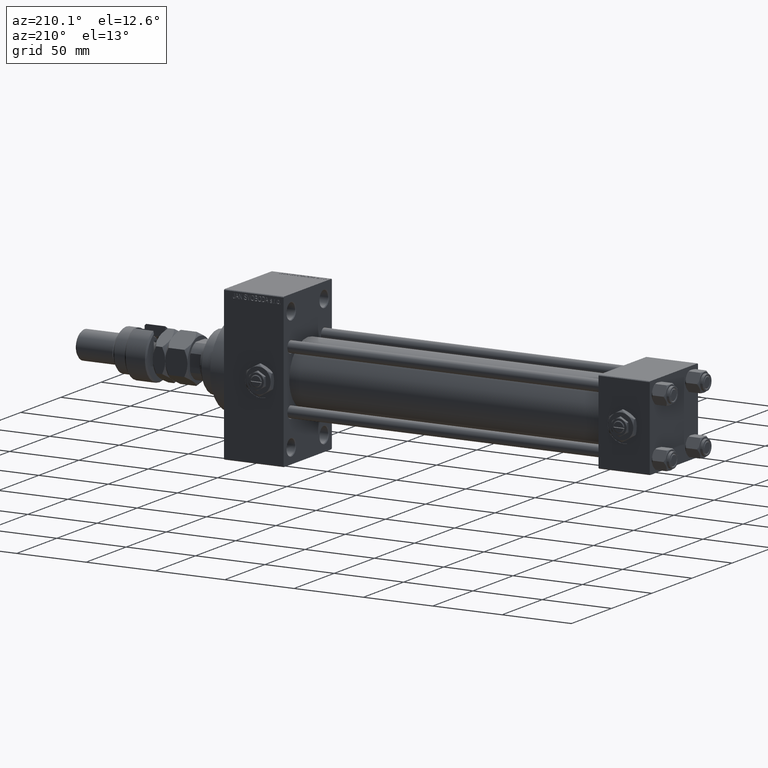
[diagram: clean part render]
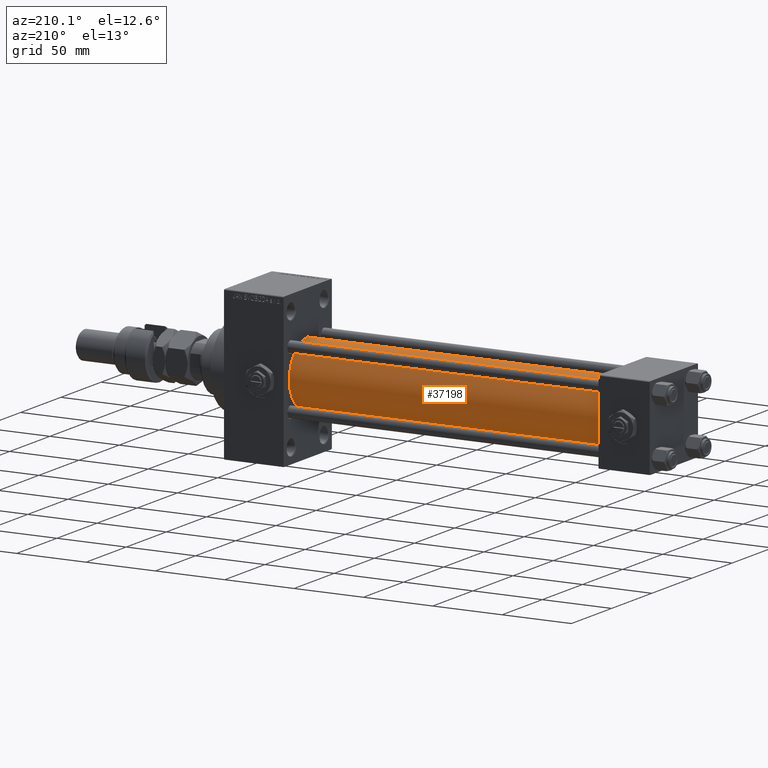
[diagram: same view with one face highlighted and labeled with its STEP entity id]
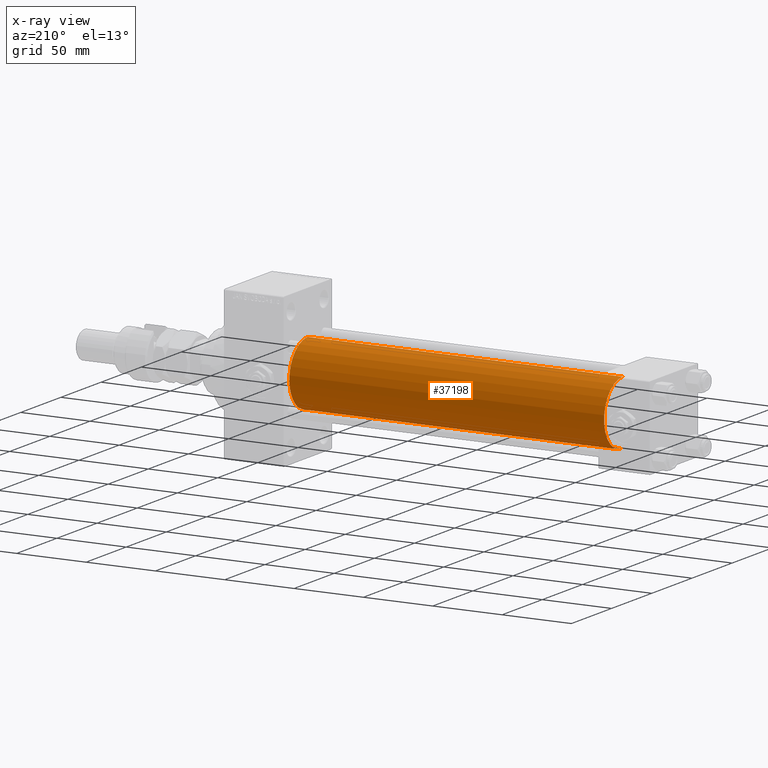
[diagram: x-ray of the same camera — body ghosted, the highlighted face saturated]
A machine part, auxiliary view. The second image highlights one B-rep face of the part: STEP entity #37198.
The next image is the same camera in x-ray: the body ghosted, the highlighted face saturated — about 0% of this face is hidden behind the body in this view.
In plain terms, the highlighted cylindrical surface (partial cylindrical patch) has radius 23 mm, axis along (-1, -0, -0).
Its self-contained STEP definition (entity closure, byte-faithful):
#333 = VERTEX_POINT ( 'NONE', #1546 ) ;
#1546 = CARTESIAN_POINT ( 'NONE',  ( 264.0000000000000000, 2.146024240737012665E-16, -23.00000000000000000 ) ) ;
#2211 = EDGE_CURVE ( 'NONE', #40454, #3701, #44530, .T. ) ;
#3388 = CARTESIAN_POINT ( 'NONE',  ( 37.00000000000000711, -2.602085213965210642E-15, 0.000000000000000000 ) ) ;
#3701 = VERTEX_POINT ( 'NONE', #6055 ) ;
#6055 = CARTESIAN_POINT ( 'NONE',  ( 37.00000000000000711, -2.602085213965210642E-15, 23.00000000000000000 ) ) ;
#7519 = CARTESIAN_POINT ( 'NONE',  ( 264.0000000000000000, -2.602085213965210642E-15, 23.00000000000000000 ) ) ;
#9351 = DIRECTION ( 'NONE',  ( 0.000000000000000000, 0.000000000000000000, -1.000000000000000000 ) ) ;
#10011 = CIRCLE ( 'NONE', #12521, 23.00000000000000000 ) ;
#10399 = CARTESIAN_POINT ( 'NONE',  ( 264.0000000000000000, -2.602085213965210642E-15, 0.000000000000000000 ) ) ;
#11850 = VECTOR ( 'NONE', #40624, 1000.000000000000000 ) ;
#12221 = EDGE_CURVE ( 'NONE', #48445, #3701, #10011, .T. ) ;
#12521 = AXIS2_PLACEMENT_3D ( 'NONE', #3388, #31061, #42910 ) ;
#13527 = AXIS2_PLACEMENT_3D ( 'NONE', #45453, #45193, #9351 ) ;
#14332 = CYLINDRICAL_SURFACE ( 'NONE', #35516, 23.00000000000000000 ) ;
#15859 = CARTESIAN_POINT ( 'NONE',  ( 264.0000000000000000, 2.146024240737012665E-16, -23.00000000000000000 ) ) ;
#16760 = EDGE_CURVE ( 'NONE', #333, #40454, #41316, .T. ) ;
#19609 = EDGE_CURVE ( 'NONE', #333, #48445, #29037, .T. ) ;
#25816 = ORIENTED_EDGE ( 'NONE', *, *, #19609, .T. ) ;
#26488 = DIRECTION ( 'NONE',  ( -1.000000000000000000, -0.000000000000000000, -0.000000000000000000 ) ) ;
#26601 = EDGE_LOOP ( 'NONE', ( #30145, #25816, #32672, #51116 ) ) ;
#27432 = VECTOR ( 'NONE', #31912, 1000.000000000000000 ) ;
#29037 = LINE ( 'NONE', #15859, #11850 ) ;
#30145 = ORIENTED_EDGE ( 'NONE', *, *, #16760, .F. ) ;
#31061 = DIRECTION ( 'NONE',  ( 1.000000000000000000, -0.000000000000000000, 0.000000000000000000 ) ) ;
#31912 = DIRECTION ( 'NONE',  ( -1.000000000000000000, -0.000000000000000000, -0.000000000000000000 ) ) ;
#32672 = ORIENTED_EDGE ( 'NONE', *, *, #12221, .T. ) ;
#34649 = FACE_OUTER_BOUND ( 'NONE', #26601, .T. ) ;
#35516 = AXIS2_PLACEMENT_3D ( 'NONE', #10399, #26488, #42554 ) ;
#36373 = CARTESIAN_POINT ( 'NONE',  ( 264.0000000000000000, -2.602085213965210642E-15, 23.00000000000000000 ) ) ;
#37198 = ADVANCED_FACE ( 'NONE', ( #34649 ), #14332, .T. ) ;
#40454 = VERTEX_POINT ( 'NONE', #7519 ) ;
#40624 = DIRECTION ( 'NONE',  ( -1.000000000000000000, -0.000000000000000000, -0.000000000000000000 ) ) ;
#40886 = CARTESIAN_POINT ( 'NONE',  ( 37.00000000000000711, 2.146024240737012665E-16, -23.00000000000000000 ) ) ;
#41316 = CIRCLE ( 'NONE', #13527, 23.00000000000000000 ) ;
#42554 = DIRECTION ( 'NONE',  ( 0.000000000000000000, 0.000000000000000000, 1.000000000000000000 ) ) ;
#42910 = DIRECTION ( 'NONE',  ( 0.000000000000000000, 0.000000000000000000, 1.000000000000000000 ) ) ;
#44530 = LINE ( 'NONE', #36373, #27432 ) ;
#45193 = DIRECTION ( 'NONE',  ( 1.000000000000000000, 0.000000000000000000, 0.000000000000000000 ) ) ;
#45453 = CARTESIAN_POINT ( 'NONE',  ( 264.0000000000000000, -2.602085213965210642E-15, 0.000000000000000000 ) ) ;
#48445 = VERTEX_POINT ( 'NONE', #40886 ) ;
#51116 = ORIENTED_EDGE ( 'NONE', *, *, #2211, .F. ) ;